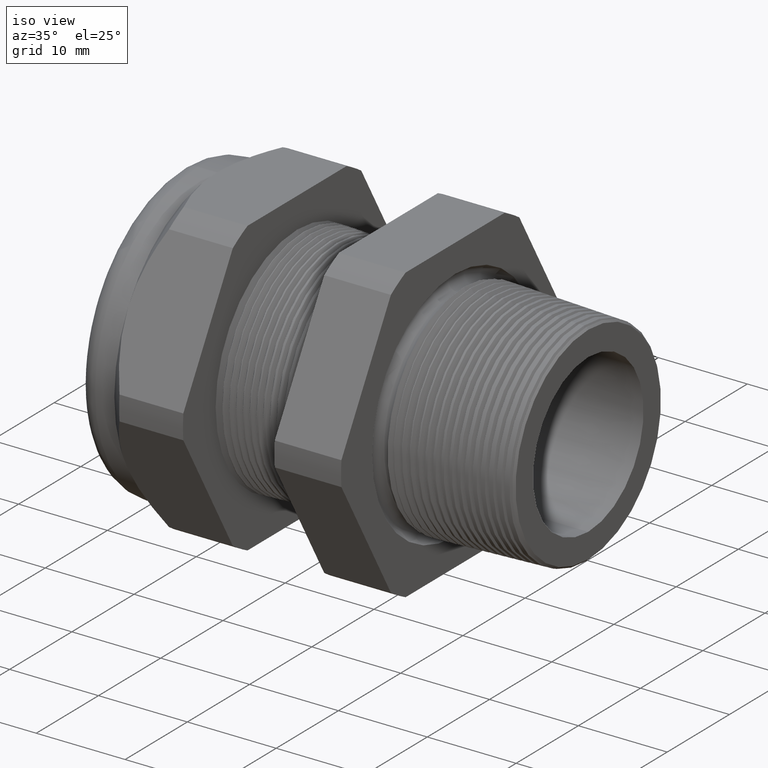
[diagram: clean part render]
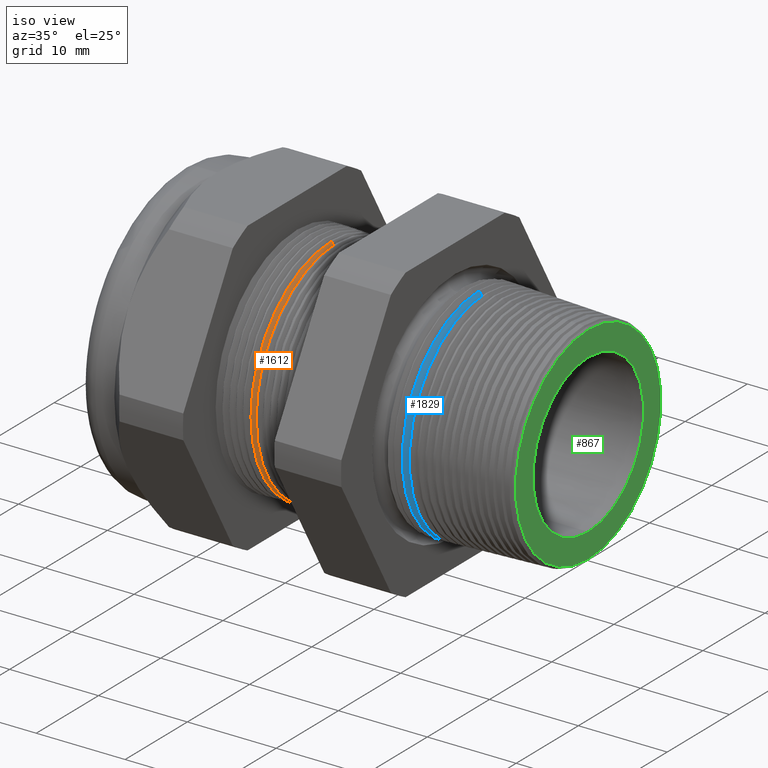
[diagram: same view with three faces highlighted in distinct colors, each labeled with its STEP entity id]
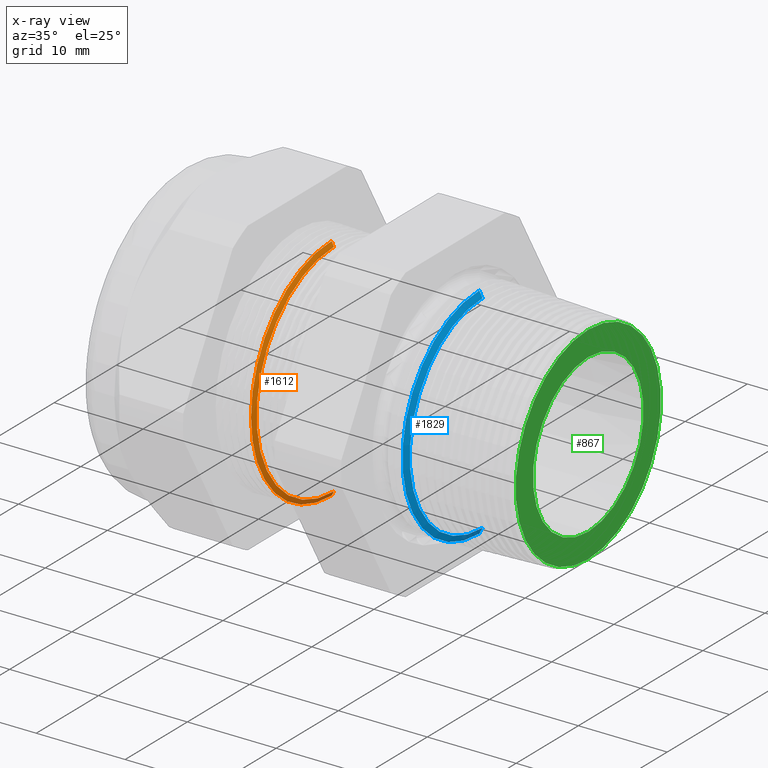
[diagram: x-ray of the same camera — body ghosted, the three highlighted faces saturated]
A machine part, iso view with three faces highlighted in distinct colors.
The next image is the same camera in x-ray (body ghosted, the three faces saturated) — at least one of them is partly hidden behind the body in this view.
Their STEP definitions:

[orange] entity #1612 — the highlighted conical surface has half-angle 62 deg.
#39 = VERTEX_POINT ( 'NONE', #2065 ) ;
#41 = VERTEX_POINT ( 'NONE', #2059 ) ;
#75 = EDGE_CURVE ( 'NONE', #41, #77, #2120, .T. ) ;
#77 = VERTEX_POINT ( 'NONE', #2166 ) ;
#80 = VERTEX_POINT ( 'NONE', #2160 ) ;
#81 = EDGE_CURVE ( 'NONE', #39, #80, #2159, .T. ) ;
#241 = EDGE_CURVE ( 'NONE', #77, #80, #2440, .T. ) ;
#1612 = ADVANCED_FACE ( 'NONE', ( #5050 ), #5049, .T. ) ;
#1613 = EDGE_LOOP ( 'NONE', ( #1669, #1670, #1672, #1673 ) ) ;
#1669 = ORIENTED_EDGE ( 'NONE', *, *, #81, .F. ) ;
#1670 = ORIENTED_EDGE ( 'NONE', *, *, #1671, .F. ) ;
#1671 = EDGE_CURVE ( 'NONE', #41, #39, #5113, .T. ) ;
#1672 = ORIENTED_EDGE ( 'NONE', *, *, #75, .T. ) ;
#1673 = ORIENTED_EDGE ( 'NONE', *, *, #241, .T. ) ;
#2059 = CARTESIAN_POINT ( 'NONE',  ( -0.8467624839723553200, 0.0000000000000000000, 0.4895114984791283900 ) ) ;
#2065 = CARTESIAN_POINT ( 'NONE',  ( -0.8467624839723553200, 6.118177938742630000E-017, -0.4895114984791283900 ) ) ;
#2120 = LINE ( 'NONE', #2179, #2168 ) ;
#2156 = DIRECTION ( 'NONE',  ( -0.4694715627859013000, 1.081298943409538600E-016, -0.8829475928589214400 ) ) ;
#2157 = VECTOR ( 'NONE', #2156, 39.37007874015748100 ) ;
#2158 = CARTESIAN_POINT ( 'NONE',  ( -0.8603149606299211900, 6.306931015608869800E-017, -0.5150000000000000100 ) ) ;
#2159 = LINE ( 'NONE', #2158, #2157 ) ;
#2160 = CARTESIAN_POINT ( 'NONE',  ( -0.8574771129433932400, 6.242969662989464600E-017, -0.5096627847513252000 ) ) ;
#2166 = CARTESIAN_POINT ( 'NONE',  ( -0.8574771129433932400, 0.0000000000000000000, 0.5096627847513250900 ) ) ;
#2167 = DIRECTION ( 'NONE',  ( -0.4694715627859013000, 0.0000000000000000000, 0.8829475928589214400 ) ) ;
#2168 = VECTOR ( 'NONE', #2167, 39.37007874015748100 ) ;
#2179 = CARTESIAN_POINT ( 'NONE',  ( -0.8603149606299211900, 0.0000000000000000000, 0.5150000000000000100 ) ) ;
#2436 = DIRECTION ( 'NONE',  ( 0.0000000000000000000, 0.0000000000000000000, 1.000000000000000000 ) ) ;
#2437 = DIRECTION ( 'NONE',  ( 1.000000000000000000, 0.0000000000000000000, 0.0000000000000000000 ) ) ;
#2438 = CARTESIAN_POINT ( 'NONE',  ( -0.8574771129433932400, 0.0000000000000000000, 0.0000000000000000000 ) ) ;
#2439 = AXIS2_PLACEMENT_3D ( 'NONE', #2438, #2437, #2436 ) ;
#2440 = CIRCLE ( 'NONE', #2439, 0.5096627847513250900 ) ;
#5044 = DIRECTION ( 'NONE',  ( 0.0000000000000000000, 0.0000000000000000000, 1.000000000000000000 ) ) ;
#5045 = DIRECTION ( 'NONE',  ( -1.000000000000000000, 0.0000000000000000000, 0.0000000000000000000 ) ) ;
#5046 = AXIS2_PLACEMENT_3D ( 'NONE', #5048, #5045, #5044 ) ;
#5048 = CARTESIAN_POINT ( 'NONE',  ( -0.8603149606299211900, 0.0000000000000000000, 0.0000000000000000000 ) ) ;
#5049 = CONICAL_SURFACE ( 'NONE', #5046, 0.5150000000000000100, 1.082104136236472500 ) ;
#5050 = FACE_OUTER_BOUND ( 'NONE', #1613, .T. ) ;
#5105 = DIRECTION ( 'NONE',  ( 0.0000000000000000000, 0.0000000000000000000, -1.000000000000000000 ) ) ;
#5106 = DIRECTION ( 'NONE',  ( 1.000000000000000000, 0.0000000000000000000, 0.0000000000000000000 ) ) ;
#5107 = CARTESIAN_POINT ( 'NONE',  ( -0.8467624839723553200, 0.0000000000000000000, 0.0000000000000000000 ) ) ;
#5108 = AXIS2_PLACEMENT_3D ( 'NONE', #5107, #5106, #5105 ) ;
#5113 = CIRCLE ( 'NONE', #5108, 0.4895114984791283900 ) ;

[blue] entity #1829 — the highlighted conical surface has half-angle 62 deg.
#786 = VERTEX_POINT ( 'NONE', #3556 ) ;
#850 = VERTEX_POINT ( 'NONE', #3682 ) ;
#900 = EDGE_CURVE ( 'NONE', #926, #923, #3780, .T. ) ;
#923 = VERTEX_POINT ( 'NONE', #3799 ) ;
#926 = VERTEX_POINT ( 'NONE', #3797 ) ;
#934 = EDGE_CURVE ( 'NONE', #850, #923, #3848, .T. ) ;
#991 = EDGE_CURVE ( 'NONE', #786, #926, #3927, .T. ) ;
#1757 = EDGE_CURVE ( 'NONE', #786, #850, #5247, .T. ) ;
#1758 = ORIENTED_EDGE ( 'NONE', *, *, #991, .T. ) ;
#1759 = ORIENTED_EDGE ( 'NONE', *, *, #900, .T. ) ;
#1829 = ADVANCED_FACE ( 'NONE', ( #5288 ), #5282, .T. ) ;
#1830 = EDGE_LOOP ( 'NONE', ( #1831, #1832, #1758, #1759 ) ) ;
#1831 = ORIENTED_EDGE ( 'NONE', *, *, #934, .F. ) ;
#1832 = ORIENTED_EDGE ( 'NONE', *, *, #1757, .F. ) ;
#3556 = CARTESIAN_POINT ( 'NONE',  ( -0.1887370280109211300, 0.0000000000000000000, 0.4599582608631793100 ) ) ;
#3682 = CARTESIAN_POINT ( 'NONE',  ( -0.1887370280109211300, 5.797273877393069500E-017, -0.4599582608631793100 ) ) ;
#3776 = DIRECTION ( 'NONE',  ( 0.0000000000000000000, 0.0000000000000000000, 1.000000000000000000 ) ) ;
#3777 = DIRECTION ( 'NONE',  ( 1.000000000000000000, 0.0000000000000000000, 0.0000000000000000000 ) ) ;
#3778 = CARTESIAN_POINT ( 'NONE',  ( -0.2030135066194303500, 0.0000000000000000000, 0.0000000000000000000 ) ) ;
#3779 = AXIS2_PLACEMENT_3D ( 'NONE', #3778, #3777, #3776 ) ;
#3780 = CIRCLE ( 'NONE', #3779, 0.4868084120141527000 ) ;
#3797 = CARTESIAN_POINT ( 'NONE',  ( -0.2030135066194303500, 0.0000000000000000000, 0.4868084120141527000 ) ) ;
#3799 = CARTESIAN_POINT ( 'NONE',  ( -0.2030135066194303500, 5.962509316662496400E-017, -0.4868084120141527000 ) ) ;
#3845 = DIRECTION ( 'NONE',  ( -0.4694715627859006300, 1.081298943409538900E-016, -0.8829475928589217700 ) ) ;
#3846 = VECTOR ( 'NONE', #3845, 39.37007874015748900 ) ;
#3847 = CARTESIAN_POINT ( 'NONE',  ( -0.2049999999999999600, 6.007437060705931600E-017, -0.4905444626882251600 ) ) ;
#3848 = LINE ( 'NONE', #3847, #3846 ) ;
#3924 = DIRECTION ( 'NONE',  ( -0.4694715627859006300, 0.0000000000000000000, 0.8829475928589217700 ) ) ;
#3925 = VECTOR ( 'NONE', #3924, 39.37007874015748900 ) ;
#3926 = CARTESIAN_POINT ( 'NONE',  ( -0.2049999999999999600, 0.0000000000000000000, 0.4905444626882251600 ) ) ;
#3927 = LINE ( 'NONE', #3926, #3925 ) ;
#5243 = DIRECTION ( 'NONE',  ( 0.0000000000000000000, 0.0000000000000000000, -1.000000000000000000 ) ) ;
#5244 = DIRECTION ( 'NONE',  ( 1.000000000000000000, 0.0000000000000000000, 0.0000000000000000000 ) ) ;
#5245 = CARTESIAN_POINT ( 'NONE',  ( -0.1887370280109211300, 0.0000000000000000000, 0.0000000000000000000 ) ) ;
#5246 = AXIS2_PLACEMENT_3D ( 'NONE', #5245, #5244, #5243 ) ;
#5247 = CIRCLE ( 'NONE', #5246, 0.4599582608631793100 ) ;
#5282 = CONICAL_SURFACE ( 'NONE', #5283, 0.4905444626882251600, 1.082104136236473200 ) ;
#5283 = AXIS2_PLACEMENT_3D ( 'NONE', #5348, #5347, #5346 ) ;
#5288 = FACE_OUTER_BOUND ( 'NONE', #1830, .T. ) ;
#5346 = DIRECTION ( 'NONE',  ( 0.0000000000000000000, 0.0000000000000000000, 1.000000000000000000 ) ) ;
#5347 = DIRECTION ( 'NONE',  ( -1.000000000000000000, 0.0000000000000000000, 0.0000000000000000000 ) ) ;
#5348 = CARTESIAN_POINT ( 'NONE',  ( -0.2049999999999999600, 0.0000000000000000000, 0.0000000000000000000 ) ) ;

[green] entity #867 — the highlighted planar face has unit normal (1, 0, 0).
#112 = VERTEX_POINT ( 'NONE', #2228 ) ;
#116 = VERTEX_POINT ( 'NONE', #2216 ) ;
#117 = EDGE_CURVE ( 'NONE', #112, #116, #2278, .T. ) ;
#538 = VERTEX_POINT ( 'NONE', #3081 ) ;
#542 = EDGE_CURVE ( 'NONE', #544, #538, #3078, .T. ) ;
#544 = VERTEX_POINT ( 'NONE', #3069 ) ;
#822 = EDGE_LOOP ( 'NONE', ( #1346, #1349 ) ) ;
#867 = ADVANCED_FACE ( 'NONE', ( #3717, #3716 ), #3715, .T. ) ;
#1346 = ORIENTED_EDGE ( 'NONE', *, *, #1347, .T. ) ;
#1347 = EDGE_CURVE ( 'NONE', #538, #544, #4645, .T. ) ;
#1349 = ORIENTED_EDGE ( 'NONE', *, *, #542, .T. ) ;
#1350 = EDGE_LOOP ( 'NONE', ( #1351, #1352 ) ) ;
#1351 = ORIENTED_EDGE ( 'NONE', *, *, #117, .F. ) ;
#1352 = ORIENTED_EDGE ( 'NONE', *, *, #1353, .F. ) ;
#1353 = EDGE_CURVE ( 'NONE', #116, #112, #4640, .T. ) ;
#2215 = CARTESIAN_POINT ( 'NONE',  ( 0.2800000000000000300, 0.0000000000000000000, 0.0000000000000000000 ) ) ;
#2216 = CARTESIAN_POINT ( 'NONE',  ( 0.2800000000000000300, 4.316519974034729800E-017, -0.3499412086880983000 ) ) ;
#2228 = CARTESIAN_POINT ( 'NONE',  ( 0.2800000000000000300, 0.0000000000000000000, 0.3499412086880983000 ) ) ;
#2275 = DIRECTION ( 'NONE',  ( 0.0000000000000000000, 0.0000000000000000000, -1.000000000000000000 ) ) ;
#2276 = DIRECTION ( 'NONE',  ( 1.000000000000000000, 0.0000000000000000000, 0.0000000000000000000 ) ) ;
#2277 = AXIS2_PLACEMENT_3D ( 'NONE', #2215, #2276, #2275 ) ;
#2278 = CIRCLE ( 'NONE', #2277, 0.3499412086880983000 ) ;
#3069 = CARTESIAN_POINT ( 'NONE',  ( 0.2800000000000000300, 5.683103485507543200E-017, -0.4595730491353136600 ) ) ;
#3070 = DIRECTION ( 'NONE',  ( 0.0000000000000000000, 0.0000000000000000000, -1.000000000000000000 ) ) ;
#3071 = DIRECTION ( 'NONE',  ( 1.000000000000000000, 0.0000000000000000000, 0.0000000000000000000 ) ) ;
#3072 = CARTESIAN_POINT ( 'NONE',  ( 0.2800000000000000300, 0.0000000000000000000, 0.0000000000000000000 ) ) ;
#3073 = AXIS2_PLACEMENT_3D ( 'NONE', #3072, #3071, #3070 ) ;
#3078 = CIRCLE ( 'NONE', #3073, 0.4595730491353136600 ) ;
#3081 = CARTESIAN_POINT ( 'NONE',  ( 0.2800000000000000300, 0.0000000000000000000, 0.4595730491353136600 ) ) ;
#3711 = DIRECTION ( 'NONE',  ( 0.0000000000000000000, 0.0000000000000000000, -1.000000000000000000 ) ) ;
#3712 = DIRECTION ( 'NONE',  ( 1.000000000000000000, 0.0000000000000000000, 0.0000000000000000000 ) ) ;
#3713 = CARTESIAN_POINT ( 'NONE',  ( 0.2800000000000000300, 0.3499412086880983000, 0.0000000000000000000 ) ) ;
#3714 = AXIS2_PLACEMENT_3D ( 'NONE', #3713, #3712, #3711 ) ;
#3715 = PLANE ( 'NONE',  #3714 ) ;
#3716 = FACE_BOUND ( 'NONE', #1350, .T. ) ;
#3717 = FACE_OUTER_BOUND ( 'NONE', #822, .T. ) ;
#4636 = DIRECTION ( 'NONE',  ( 0.0000000000000000000, 0.0000000000000000000, -1.000000000000000000 ) ) ;
#4637 = DIRECTION ( 'NONE',  ( 1.000000000000000000, 0.0000000000000000000, 0.0000000000000000000 ) ) ;
#4638 = CARTESIAN_POINT ( 'NONE',  ( 0.2800000000000000300, 0.0000000000000000000, 0.0000000000000000000 ) ) ;
#4639 = AXIS2_PLACEMENT_3D ( 'NONE', #4638, #4637, #4636 ) ;
#4640 = CIRCLE ( 'NONE', #4639, 0.3499412086880983000 ) ;
#4641 = DIRECTION ( 'NONE',  ( 0.0000000000000000000, 0.0000000000000000000, -1.000000000000000000 ) ) ;
#4642 = DIRECTION ( 'NONE',  ( 1.000000000000000000, 0.0000000000000000000, 0.0000000000000000000 ) ) ;
#4643 = CARTESIAN_POINT ( 'NONE',  ( 0.2800000000000000300, 0.0000000000000000000, 0.0000000000000000000 ) ) ;
#4644 = AXIS2_PLACEMENT_3D ( 'NONE', #4643, #4642, #4641 ) ;
#4645 = CIRCLE ( 'NONE', #4644, 0.4595730491353136600 ) ;